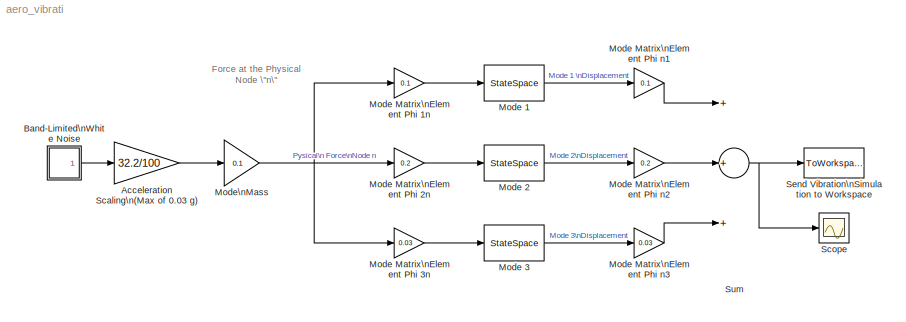
MODEL aero_vibrati
KIND model
BLOCK [Gain] Acceleration Scaling\n(Max of 0.03 g)
  Gain = 32.2/100
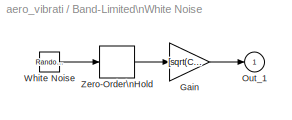
BLOCK [SubSystem] Band-Limited\nWhite Noise
  MaskCallbackString = ||
  MaskDescription = White noise for continuous (s-domain) systems.  Band-limited using zero-order-hold.
  MaskDisplay = plot(t(:),r2(:))
  MaskEnableString = on,on,on
  MaskHelp = Implemented using white noise into Zero-Order Hold block. The seed and power can be vectors of the same length to produce a vector of white noise sources. For faster simulation, set sample time to the highest value possible but in accordance with the fastest dynamics of system.
  MaskIconFrame = on
  MaskIconOpaque = on
  MaskIconRotate = none
  MaskIconUnits = autoscale
  MaskInitialization = r = rand(1,12); r2 = [r(1),r;r,r(12)]; t =[1:13;1:13];\n
  MaskPromptString = Noise Power:|Sample time:|Seed
  MaskStyleString = edit,edit,edit
  MaskTabNameString = ,,
  MaskToolTipString = on,on,on
  MaskTunableValueString = on,on,on
  MaskType = Continuous White Noise.
  MaskValueString = [0.1]|0.01|rand
  MaskVarAliasString = ,,
  MaskVariables = Cov=@1;Ts=@2;seed=@3;
  MaskVisibilityString = on,on,on
  MinAlgLoopOccurrences = off
  Ports = [0, 1]
  PropExecContextAcrossSSBoundary = on
  RTWSystemCode = Auto
  TreatAsAtomicUnit = off
BLOCK [Gain] Band-Limited\nWhite Noise/Gain
  Gain = [sqrt(Cov)]/[sqrt(Ts)]
BLOCK [Outport] Band-Limited\nWhite Noise/Out_1
  IconDisplay = Port number
  InitialOutput = 0
BLOCK [RandomNumber] Band-Limited\nWhite Noise/White Noise
  SampleTime = 0
  Seed = seed
BLOCK [ZeroOrderHold] Band-Limited\nWhite Noise/Zero-Order\nHold
  SampleTime = Ts
BLOCK [StateSpace] Mode 1
  A = [0 1;-omega^2 -2*zeta*omega]
  B = [0 omega^2]'
  C = [1 0]
  D = 0
BLOCK [StateSpace] Mode 2
  A = [0 1;-(2*omega)^2 -2*zeta*2*omega]
  B = [0 omega^2]'
  C = [1 0]
  D = 0
BLOCK [StateSpace] Mode 3
  A = [0 1;-(3*omega)^2 -2*zeta*3*omega]
  B = [0 omega^2]'
  C = [1 0]
  D = 0
BLOCK [Gain] Mode Matrix\nElement Phi  n1
  Gain = 0.1
BLOCK [Gain] Mode Matrix\nElement Phi  n2
  Gain = 0.2
BLOCK [Gain] Mode Matrix\nElement Phi  n3
  Gain = 0.03
BLOCK [Gain] Mode Matrix\nElement Phi 1n
  Gain = 0.1
BLOCK [Gain] Mode Matrix\nElement Phi 2n
  Gain = 0.2
BLOCK [Gain] Mode Matrix\nElement Phi 3n
  Gain = 0.03
BLOCK [Gain] Mode\nMass
  Gain = 0.1
BLOCK [Scope] Scope
  DataFormat = Array
  NumInputPorts = 1
  Ports = [1]
  TickLabels = on
  YMax = 0.02
  YMin = -0.02
  ZoomMode = yonly
BLOCK [ToWorkspace] Send Vibration\nSimulation to Workspace
  MaxDataPoints = inf
  SampleTime = 0.01
  SaveFormat = Array
  VariableName = vibdat
BLOCK [Sum] Sum
  Inputs = +++
  Ports = [3, 1]
ANNOTATION (root): Force at the Physical \nNode \"n\"
LINE Acceleration Scaling\n(Max of 0.03 g):1 -> Mode\nMass:1
LINE Band-Limited\nWhite Noise/Gain:1 -> Band-Limited\nWhite Noise/Out_1:1
LINE Band-Limited\nWhite Noise/White Noise:1 -> Band-Limited\nWhite Noise/Zero-Order\nHold:1
LINE Band-Limited\nWhite Noise/Zero-Order\nHold:1 -> Band-Limited\nWhite Noise/Gain:1
LINE Band-Limited\nWhite Noise:1 -> Acceleration Scaling\n(Max of 0.03 g):1
LINE Mode 1:1 -> Mode Matrix\nElement Phi  n1:1
LINE Mode 2:1 -> Mode Matrix\nElement Phi  n2:1
LINE Mode 3:1 -> Mode Matrix\nElement Phi  n3:1
LINE Mode Matrix\nElement Phi  n1:1 -> Sum:1
LINE Mode Matrix\nElement Phi  n2:1 -> Sum:2
LINE Mode Matrix\nElement Phi  n3:1 -> Sum:3
LINE Mode Matrix\nElement Phi 1n:1 -> Mode 1:1
LINE Mode Matrix\nElement Phi 2n:1 -> Mode 2:1
LINE Mode Matrix\nElement Phi 3n:1 -> Mode 3:1
NET Mode\nMass:1 -> Mode Matrix\nElement Phi 1n:1, Mode Matrix\nElement Phi 2n:1, Mode Matrix\nElement Phi 3n:1
NET Sum:1 -> Scope:1, Send Vibration\nSimulation to Workspace:1
note: NET lines group one-source signal fan-out (src -> all destinations, sorted); 1:1 wires keep LINE
